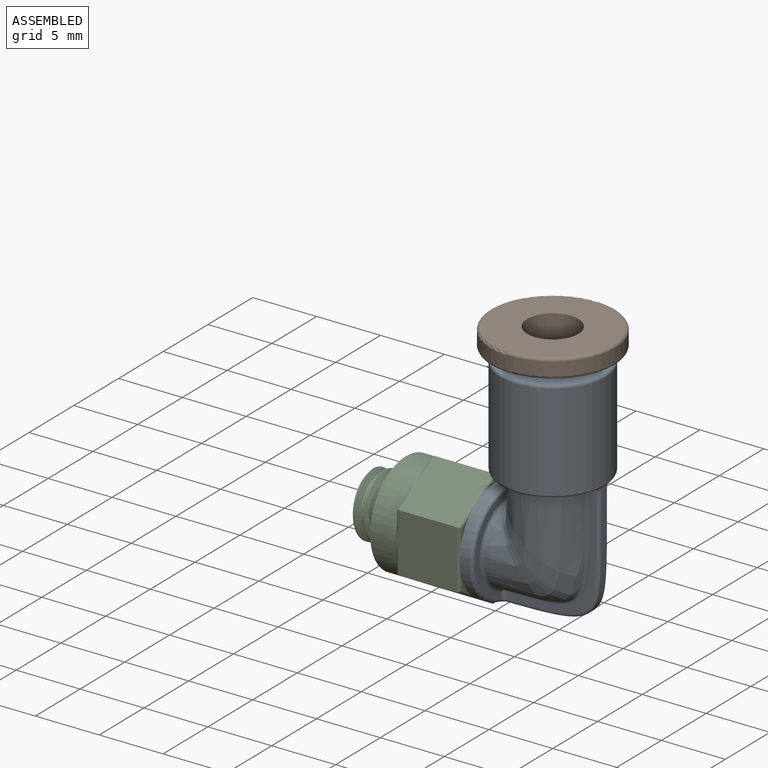
[diagram: assembled view]
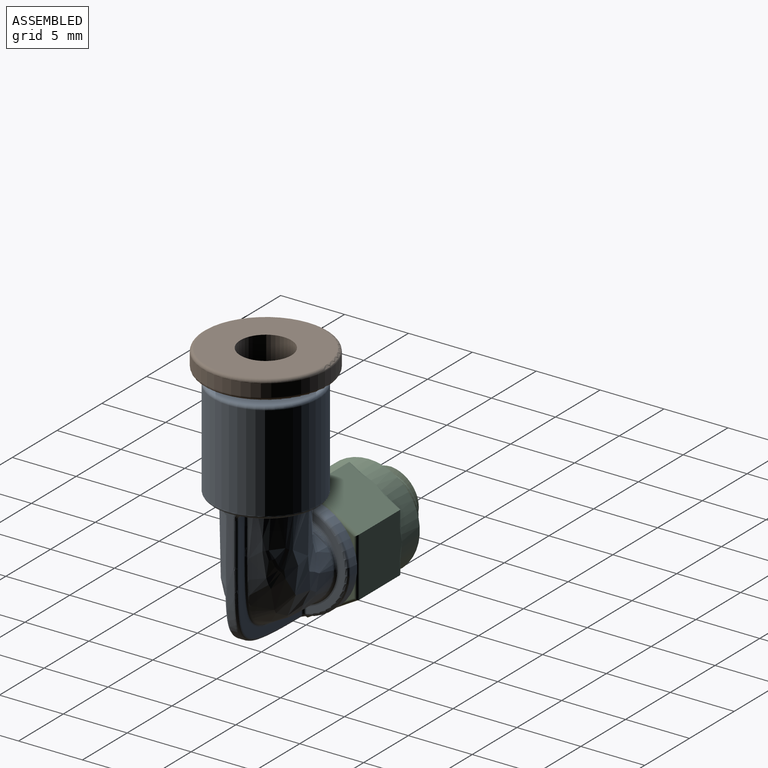
[diagram: assembled view, second angle]
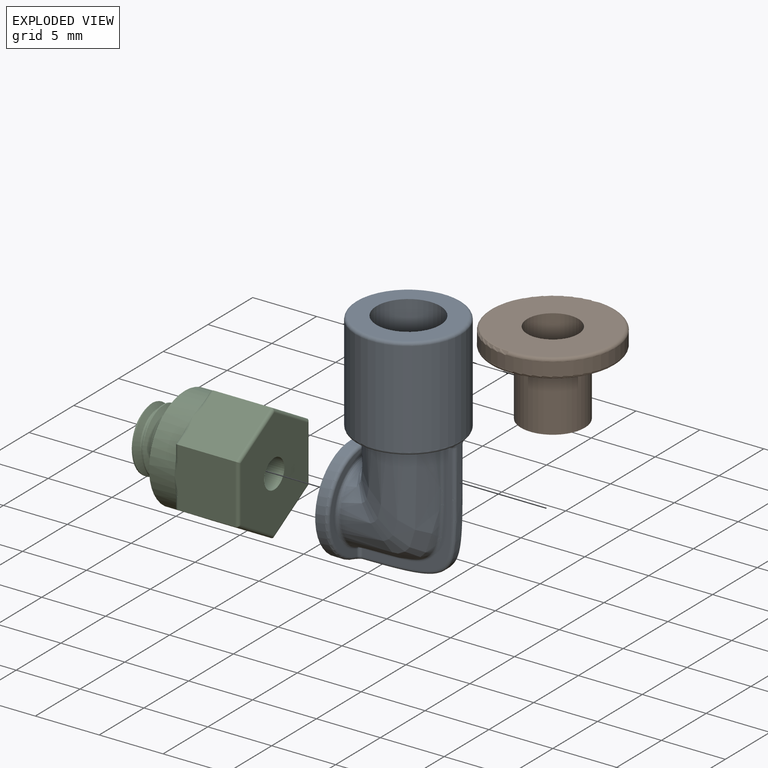
[diagram: exploded view]
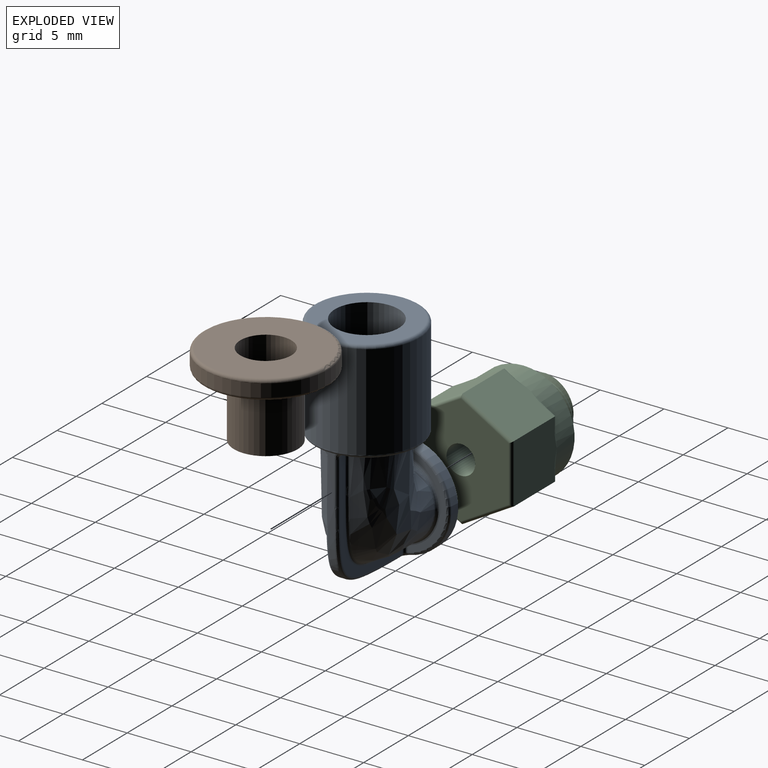
[diagram: exploded view, second angle]
ASSEMBLY  parts=3 mates=2
PART A: 39 faces, bbox 12.1x9x18.4 mm
  f0: plane 7.79x7.71mm, normal (0,0,-1), area 13mm2, adj f16,f19,f26,f32,f33,f36
  f1: plane 5x5mm, normal (0,0,1), area 15.7mm2, adj f7,f9
  f2: plane 7.5x7.42mm, normal (1,0,0), area 10.2mm2, adj f17,f18,f22,f28
  f3: cylinder r=4mm len=8mm, axis (-1,0,0), area 19.1mm2, adj f5,f11,f12,f18,f21,f27,f35,f38
  f4: cylinder r=1.12mm len=2.25mm, axis (-1,0,0), area 7.1mm2, adj f5,f7
  f5: plane 8x8mm, normal (-1,0,0), area 46.3mm2, adj f3,f4
  f6: bspline ~8.84x6.4mm, area 133.5mm2, adj f16,f17,f24,f30
  f7: bspline ~7.32x5.97mm, area 60.4mm2, adj f1,f4
  f8: cylinder r=4.12mm len=8.25mm, axis (0,0,-1), area 194.4mm2, adj f19,f20
  f9: cylinder r=2.5mm len=8mm, axis (0,0,-1), area 125.7mm2, adj f1,f10
  f10: plane 7.75x7.75mm, normal (0,0,1), area 27.5mm2, adj f9,f20
  f11: plane 0.55x0.14mm, normal (-1,0,0), area 0mm2, adj f3,f13,f38
  f12: plane 0.55x0.14mm, normal (-1,0,0), area 0mm2, adj f3,f13,f35
  f13: extruded ~10.04x7.5mm, area 8.1mm2, adj f11,f12,f19,f33,f34,f35,f36,f37
  f14: plane 9.5x7.01mm, normal (0,-1,0), area 9.2mm2, adj f27,f28,f30,f32,f34
  f15: plane 9.5x7.01mm, normal (0,1,0), area 9.3mm2, adj f21,f22,f24,f26,f37
  f16: bspline ~6.5x6.41mm, area 7.1mm2, adj f0,f6,f25,f31
  f17: bspline ~6.5x6.42mm, area 7.1mm2, adj f2,f6,f23,f29
  f18: torus R=3.75mm, axis (1,0,0), area 9.1mm2, adj f2,f3,f21,f27
  f19: torus R=3.88mm, axis (0,0,1), area 9.8mm2, adj f0,f8,f13,f33,f36
  f20: torus R=3.88mm, axis (0,0,1), area 10mm2, adj f8,f10
  f21: bspline ~0.59x0.58mm, area 0.1mm2, adj f3,f15,f18,f22,f38
  f22: cylinder r=0.25mm len=0.51mm, axis (0,0,1), area 0.2mm2, adj f2,f15,f21,f23
  f23: sphere r=0.25mm, area 0.1mm2, adj f17,f22,f24
  f24: bspline ~13.21x10.7mm, area 4.6mm2, adj f6,f15,f23,f25
  f25: sphere r=0.25mm, area 0.1mm2, adj f16,f24,f26
  f26: cylinder r=0.25mm len=0.59mm, axis (-1,0,0), area 0.2mm2, adj f0,f15,f25,f36
  f27: bspline ~0.59x0.58mm, area 0.1mm2, adj f3,f14,f18,f28,f35
  f28: cylinder r=0.25mm len=0.51mm, axis (0,0,-1), area 0.2mm2, adj f2,f14,f27,f29
  f29: sphere r=0.25mm, area 0.1mm2, adj f17,f28,f30
  f30: bspline ~13.21x10.69mm, area 4.6mm2, adj f6,f14,f29,f31
  f31: sphere r=0.25mm, area 0.1mm2, adj f16,f30,f32
  f32: cylinder r=0.25mm len=0.59mm, axis (1,0,0), area 0.2mm2, adj f0,f14,f31,f33
  f33: bspline ~0.64x0.58mm, area 0.1mm2, adj f0,f13,f19,f32,f34
  f34: bspline ~11.98x8.98mm, area 6mm2, adj f13,f14,f33,f35
  f35: bspline ~0.59x0.37mm, area 0.1mm2, adj f3,f12,f13,f27,f34
  f36: bspline ~0.62x0.6mm, area 0.1mm2, adj f0,f13,f19,f26,f37
  f37: bspline ~11.98x8.98mm, area 6mm2, adj f13,f15,f36,f38
  f38: bspline ~0.59x0.37mm, area 0.1mm2, adj f3,f11,f13,f21,f37
PART B: 9 faces, bbox 10.6x10.6x6.5 mm
  f0: cylinder r=2.5mm len=5mm, axis (0,0,1), area 74.6mm2, adj f1,f8
  f1: plane 5x5mm, normal (0,0,-1), area 7.1mm2, adj f0,f2
  f2: cylinder r=2mm len=6.5mm, axis (0,0,1), area 81.7mm2, adj f1,f3
  f3: plane 9.25x9.25mm, normal (0,0,1), area 54.6mm2, adj f2,f6
  f4: cylinder r=4.88mm len=9.75mm, axis (0,0,1), area 30.6mm2, adj f6,f7
  f5: plane 9.25x9.25mm, normal (0,0,-1), area 43.4mm2, adj f7,f8
  f6: torus R=4.62mm, axis (0,0,-1), area 11.8mm2, adj f3,f4
  f7: torus R=4.62mm, axis (0,0,1), area 11.8mm2, adj f4,f5
  f8: torus R=2.75mm, axis (0,0,1), area 6.4mm2, adj f0,f5
PART C: 52 faces, bbox 10.1x8.3x9.5 mm
  f0: cylinder r=2.5mm len=5mm, axis (-1,0,0), area 5mm2, adj f1,f4,f7,f8
  f1: plane 4.76x4.73mm, normal (-1,0,0), area 7.7mm2, adj f0,f5,f6,f7,f8
  f2: cylinder r=1.12mm len=9mm, axis (-1,0,0), area 63.6mm2, adj f5,f20
  f3: cylinder r=4mm len=8mm, axis (-1,0,0), area 50.3mm2, adj f4,f9,f10,f11,f12,f13,f21,f22
  f4: plane 8.23x8.23mm, normal (-1,0,0), area 34.3mm2, adj f0,f3,f6,f7,f8
  f5: cone r=1.12mm half-angle=45deg, axis (-1,0,0), area 6.1mm2, adj f1,f2
  f6: bspline ~4.77x4.13mm, area 9mm2, adj f1,f4,f7,f8
  f7: bspline ~5.77x5mm, area 22.5mm2, adj f0,f1,f4,f6
  f8: bspline ~5.77x5mm, area 22.4mm2, adj f0,f1,f4,f6
  f9: plane 1.16x0.67mm, normal (-1,0,0), area 0.2mm2, adj f3,f35,f36
  f10: plane 1.16x0.67mm, normal (-1,0,0), area 0.2mm2, adj f3,f43,f44
  f11: plane 1.34x0.39mm, normal (-1,0,0), area 0.2mm2, adj f3,f31,f33
  f12: plane 1.16x0.67mm, normal (-1,0,0), area 0.2mm2, adj f3,f27,f29
  f13: plane 1.16x0.67mm, normal (-1,0,0), area 0.2mm2, adj f3,f39,f40
  f14: plane 4.93x4.8mm, normal (0,1,0), area 21.1mm2, adj f15,f19,f34,f35,f44,f45,f48
  f15: plane 4.93x4.18mm, normal (0,0.5,0.87), area 21.1mm2, adj f14,f16,f24,f25,f36,f37,f50
  f16: plane 4.93x4.18mm, normal (0,-0.5,0.87), area 21.1mm2, adj f15,f17,f22,f23,f38,f39,f51
  f17: plane 4.93x4.8mm, normal (0,-1,0), area 21.1mm2, adj f16,f18,f28,f29,f40,f41,f49
  f18: plane 4.93x4.18mm, normal (0,-0.5,-0.87), area 21.1mm2, adj f17,f19,f26,f27,f32,f33,f47
  f19: plane 4.93x4.18mm, normal (0,0.5,-0.87), area 21.1mm2, adj f14,f18,f30,f31,f42,f43,f46
  f20: plane 8.66x7.5mm, normal (1,0,0), area 44.7mm2, adj f2,f46,f47,f48,f49,f50,f51
  f21: plane 1.34x0.39mm, normal (-1,0,0), area 0.2mm2, adj f3,f23,f25
  f22: bspline ~1.43x0.75mm, area 0.2mm2, adj f3,f16,f23
  f23: cylinder r=0.25mm len=0.92mm, axis (0,-0.87,-0.5), area 0.3mm2, adj f16,f21,f22,f25
  f24: bspline ~1.43x0.75mm, area 0.2mm2, adj f3,f15,f25
  f25: cylinder r=0.25mm len=0.92mm, axis (0,-0.87,0.5), area 0.3mm2, adj f15,f21,f23,f24
  f26: bspline ~1.29x0.99mm, area 0.2mm2, adj f3,f18,f27
  f27: cylinder r=0.25mm len=0.92mm, axis (0,0.87,-0.5), area 0.3mm2, adj f12,f18,f26,f29
  f28: bspline ~1.49x0.3mm, area 0.2mm2, adj f3,f17,f29
  f29: cylinder r=0.25mm len=0.92mm, axis (0,0,-1), area 0.3mm2, adj f12,f17,f27,f28
  f30: bspline ~1.43x0.75mm, area 0.2mm2, adj f3,f19,f31
  f31: cylinder r=0.25mm len=0.92mm, axis (0,0.87,0.5), area 0.3mm2, adj f11,f19,f30,f33
  f32: bspline ~1.43x0.75mm, area 0.2mm2, adj f3,f18,f33
  f33: cylinder r=0.25mm len=0.92mm, axis (0,0.87,-0.5), area 0.3mm2, adj f11,f18,f31,f32
  f34: bspline ~1.49x0.3mm, area 0.2mm2, adj f3,f14,f35
  f35: cylinder r=0.25mm len=0.92mm, axis (0,0,1), area 0.3mm2, adj f9,f14,f34,f36
  f36: cylinder r=0.25mm len=0.92mm, axis (0,-0.87,0.5), area 0.3mm2, adj f9,f15,f35,f37
  f37: bspline ~1.29x0.99mm, area 0.2mm2, adj f3,f15,f36
  f38: bspline ~1.29x0.99mm, area 0.2mm2, adj f3,f16,f39
  f39: cylinder r=0.25mm len=0.92mm, axis (0,-0.87,-0.5), area 0.3mm2, adj f13,f16,f38,f40
  f40: cylinder r=0.25mm len=0.92mm, axis (0,0,-1), area 0.3mm2, adj f13,f17,f39,f41
  f41: bspline ~1.49x0.3mm, area 0.2mm2, adj f3,f17,f40
  f42: bspline ~1.29x0.99mm, area 0.2mm2, adj f3,f19,f43
  f43: cylinder r=0.25mm len=0.92mm, axis (0,0.87,0.5), area 0.3mm2, adj f10,f19,f42,f44
  f44: cylinder r=0.25mm len=0.92mm, axis (0,0,1), area 0.3mm2, adj f10,f14,f43,f45
  f45: bspline ~1.49x0.3mm, area 0.2mm2, adj f3,f14,f44
  f46: cylinder r=0.25mm len=4.13mm, axis (0,-0.87,-0.5), area 1.8mm2, adj f19,f20,f47,f48
  f47: cylinder r=0.25mm len=4.13mm, axis (0,-0.87,0.5), area 1.8mm2, adj f18,f20,f46,f49
  f48: cylinder r=0.25mm len=4.62mm, axis (0,0,-1), area 1.8mm2, adj f14,f20,f46,f50
  f49: cylinder r=0.25mm len=4.62mm, axis (0,0,1), area 1.8mm2, adj f17,f20,f47,f51
  f50: cylinder r=0.25mm len=4.13mm, axis (0,0.87,-0.5), area 1.8mm2, adj f15,f20,f48,f51
  f51: cylinder r=0.25mm len=4.13mm, axis (0,0.87,0.5), area 1.8mm2, adj f16,f20,f49,f50
PLACE A at identity
PLACE B at identity
PLACE C at identity fixed
MATE fastened B.f0 <-> A.f8  axis (0,0,-1) through (9.5,0,14.75)mm
MATE fastened C.f0 <-> A.f3  axis (1,0,0) through (5,0,0)mm
